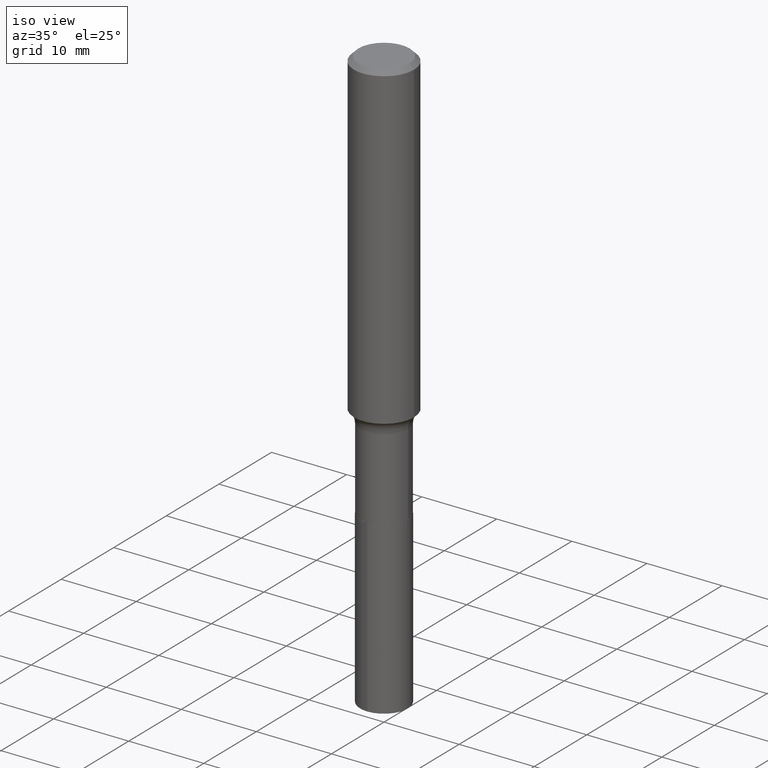
[diagram: clean part render]
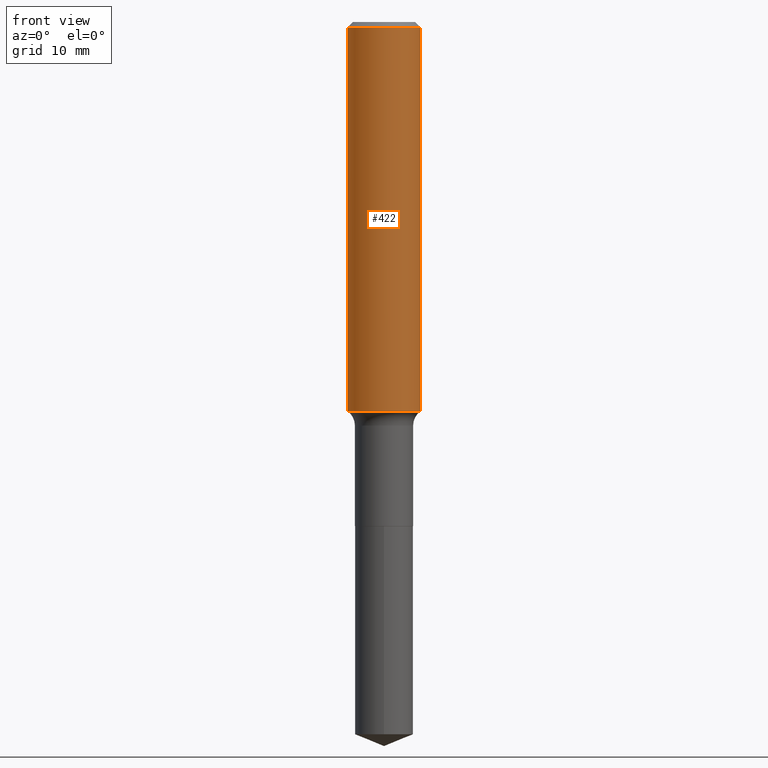
[diagram: tour spotlight — one face highlighted and labeled with its STEP entity id]
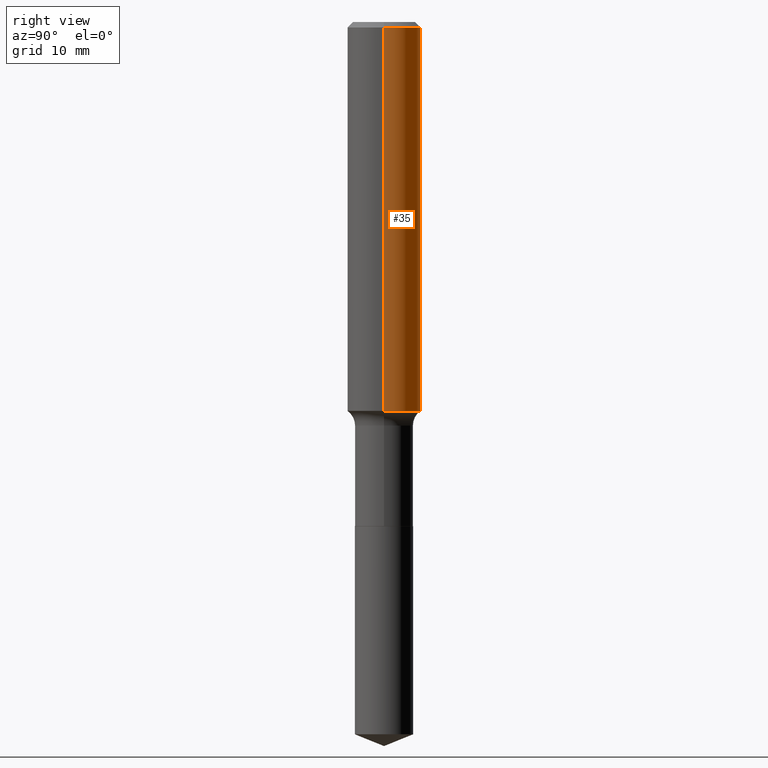
[diagram: tour spotlight — one face highlighted and labeled with its STEP entity id]
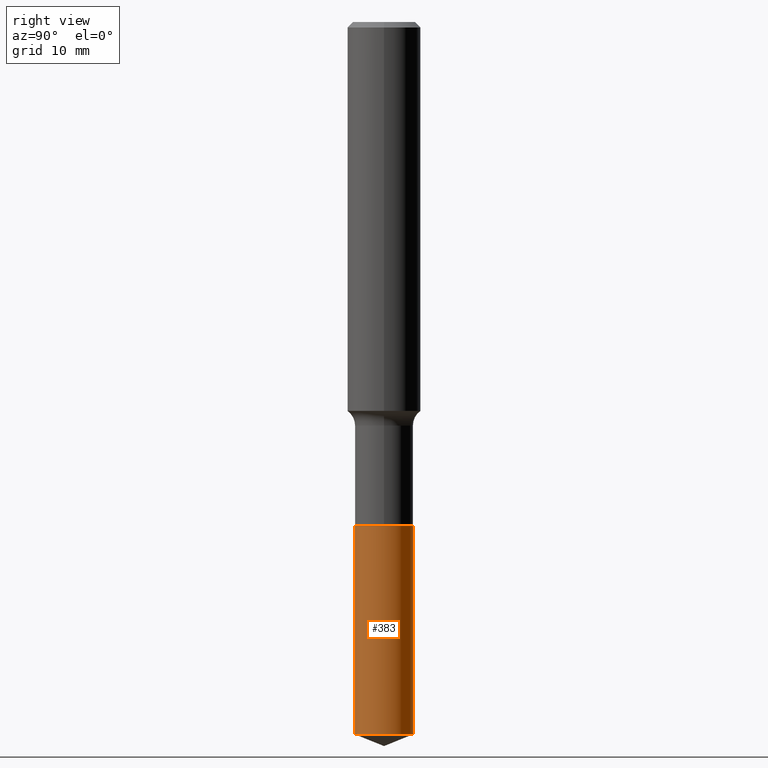
[diagram: tour spotlight — one face highlighted and labeled with its STEP entity id]
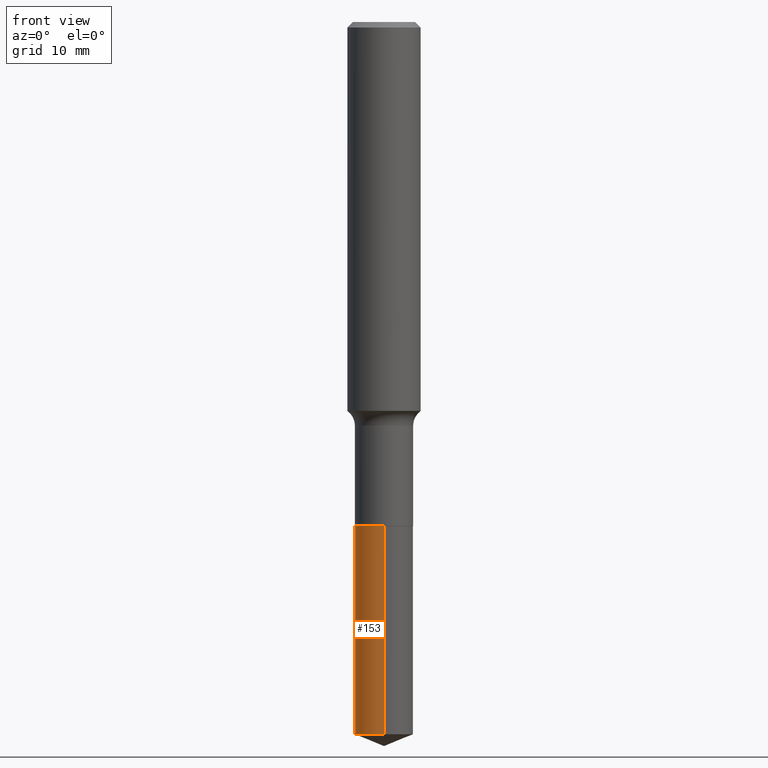
[diagram: tour spotlight — one face highlighted and labeled with its STEP entity id]
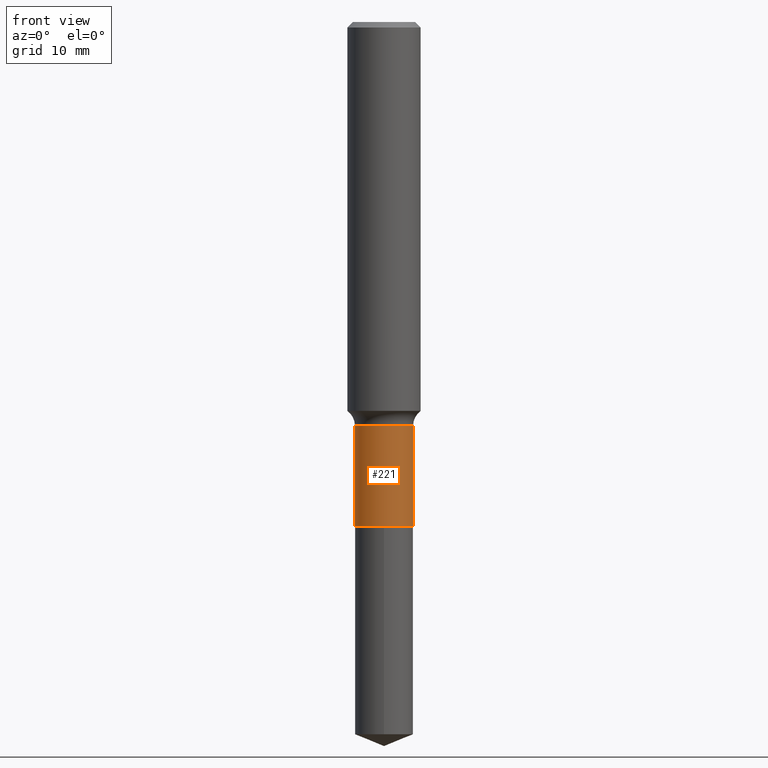
[diagram: tour spotlight — one face highlighted and labeled with its STEP entity id]
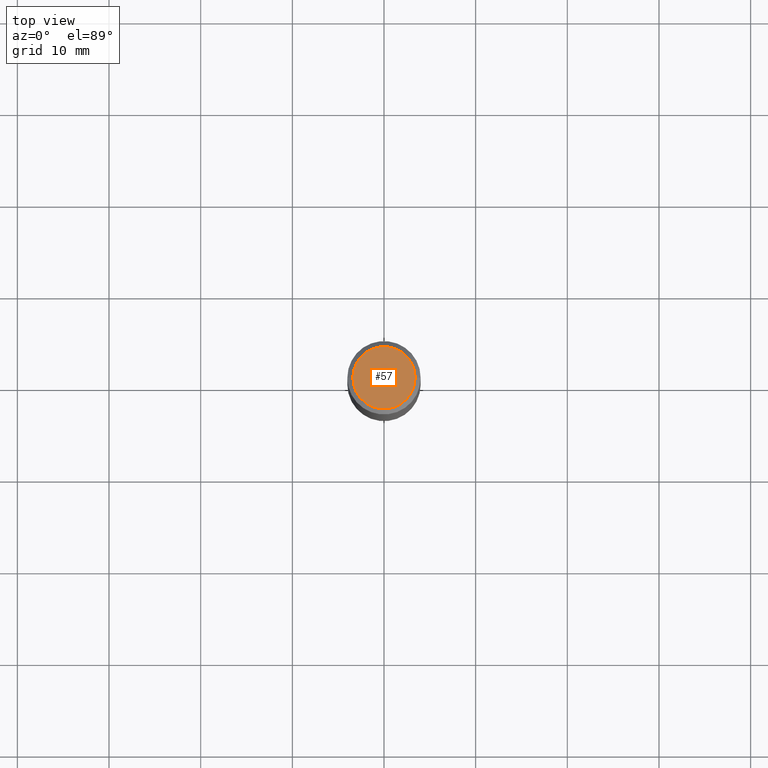
[diagram: tour spotlight — one face highlighted and labeled with its STEP entity id]
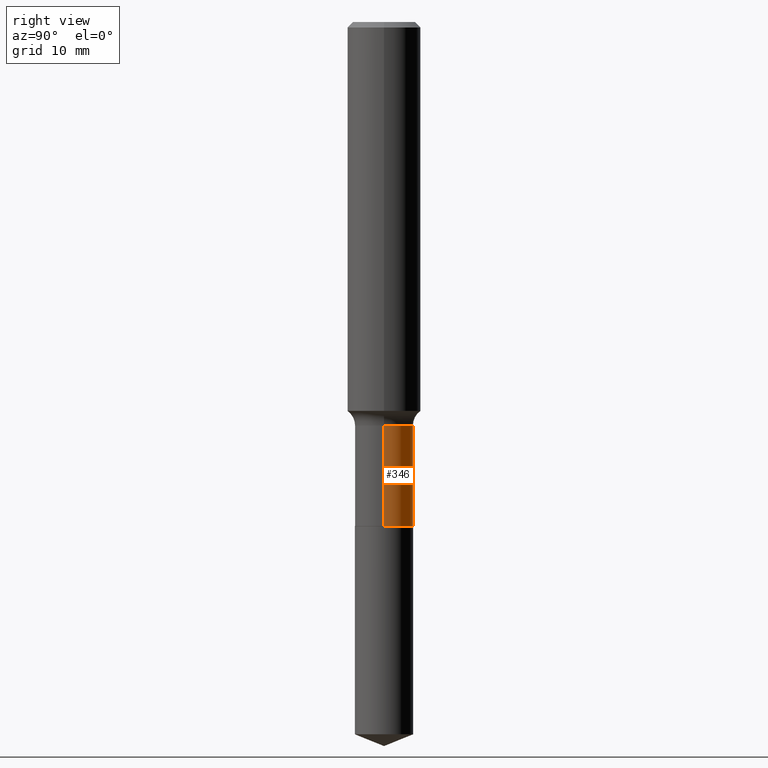
[diagram: tour spotlight — one face highlighted and labeled with its STEP entity id]
A machine part: a face-by-face anatomy tour. The part has 17 B-rep faces; the first image is the clean iso view, then the 7 largest visible faces are spotlighted one at a time (largest first), each with its STEP entity span.

Face 1 — front view, entity #422. In plain terms, the highlighted cylindrical surface (partial cylindrical patch) has radius 4.0005 mm, axis along (-0, 0, 1).
Definition (entity closure, byte-faithful):
#16 = DIRECTION ( 'NONE',  ( 1.000000000000000000, -6.982962677686265922E-15, 0.000000000000000000 ) ) ;
#33 = CYLINDRICAL_SURFACE ( 'NONE', #327, 0.1575000000000000844 ) ;
#34 = CARTESIAN_POINT ( 'NONE',  ( 0.1575000000000000844, -1.099816621735587677E-15, 7.679978421878603638E-30 ) ) ;
#36 = CARTESIAN_POINT ( 'NONE',  ( 0.000000000000000000, 0.000000000000000000, 0.000000000000000000 ) ) ;
#41 = DIRECTION ( 'NONE',  ( -2.445468806185136597E-29, 3.491481338843145583E-15, 1.000000000000000000 ) ) ;
#58 = CARTESIAN_POINT ( 'NONE',  ( -0.1575000000000000011, -1.838827269989437194E-15, -0.02362500000000013201 ) ) ;
#68 = VERTEX_POINT ( 'NONE', #58 ) ;
#81 = VERTEX_POINT ( 'NONE', #464 ) ;
#86 = EDGE_CURVE ( 'NONE', #188, #425, #240, .T. ) ;
#163 = DIRECTION ( 'NONE',  ( 1.000000000000000000, -6.982962677686265922E-15, 0.000000000000000000 ) ) ;
#166 = DIRECTION ( 'NONE',  ( -2.445468806185136877E-29, 3.491481338843145188E-15, 1.000000000000000000 ) ) ;
#172 = CARTESIAN_POINT ( 'NONE',  ( -0.1575000000000002232, -4.714273102170862595E-15, -1.670745836758741554 ) ) ;
#188 = VERTEX_POINT ( 'NONE', #172 ) ;
#213 = DIRECTION ( 'NONE',  ( -2.445468806185136597E-29, 3.491481338843145583E-15, 1.000000000000000000 ) ) ;
#227 = ORIENTED_EDGE ( 'NONE', *, *, #233, .F. ) ;
#229 = LINE ( 'NONE', #34, #323 ) ;
#233 = EDGE_CURVE ( 'NONE', #188, #68, #441, .T. ) ;
#240 = CIRCLE ( 'NONE', #386, 0.1575000000000001954 ) ;
#256 = CARTESIAN_POINT ( 'NONE',  ( -0.1575000000000000844, 1.119104808822158392E-15, -7.747322767151481189E-30 ) ) ;
#267 = FACE_OUTER_BOUND ( 'NONE', #416, .T. ) ;
#292 = DIRECTION ( 'NONE',  ( -2.445468806185136597E-29, 3.491481338843145583E-15, 1.000000000000000000 ) ) ;
#316 = CARTESIAN_POINT ( 'NONE',  ( 0.1575000000000002232, -6.933194532728610045E-15, -1.670745836758741554 ) ) ;
#317 = ORIENTED_EDGE ( 'NONE', *, *, #86, .T. ) ;
#319 = ORIENTED_EDGE ( 'NONE', *, *, #354, .T. ) ;
#323 = VECTOR ( 'NONE', #356, 39.37007874015748143 ) ;
#327 = AXIS2_PLACEMENT_3D ( 'NONE', #36, #41, #486 ) ;
#354 = EDGE_CURVE ( 'NONE', #425, #81, #229, .T. ) ;
#356 = DIRECTION ( 'NONE',  ( -2.445468806185136877E-29, 3.491481338843145188E-15, 1.000000000000000000 ) ) ;
#357 = CIRCLE ( 'NONE', #417, 0.1575000000000000011 ) ;
#371 = CARTESIAN_POINT ( 'NONE',  ( 4.085756826857186325E-29, -5.833377910993022565E-15, -1.670745836758741554 ) ) ;
#372 = CARTESIAN_POINT ( 'NONE',  ( 5.777420054612417601E-31, -8.248624663016977839E-17, -0.02362500000000013201 ) ) ;
#380 = VECTOR ( 'NONE', #166, 39.37007874015748143 ) ;
#386 = AXIS2_PLACEMENT_3D ( 'NONE', #371, #292, #16 ) ;
#399 = EDGE_CURVE ( 'NONE', #68, #81, #357, .T. ) ;
#403 = ORIENTED_EDGE ( 'NONE', *, *, #399, .F. ) ;
#416 = EDGE_LOOP ( 'NONE', ( #227, #317, #319, #403 ) ) ;
#417 = AXIS2_PLACEMENT_3D ( 'NONE', #372, #213, #163 ) ;
#422 = ADVANCED_FACE ( 'NONE', ( #267 ), #33, .T. ) ;
#425 = VERTEX_POINT ( 'NONE', #316 ) ;
#441 = LINE ( 'NONE', #256, #380 ) ;
#464 = CARTESIAN_POINT ( 'NONE',  ( 0.1575000000000000011, -1.182302868365756679E-15, -0.02362500000000013201 ) ) ;
#486 = DIRECTION ( 'NONE',  ( 1.000000000000000000, -6.982962677686267499E-15, 4.876176775795936353E-29 ) ) ;

Face 2 — right view, entity #35. In plain terms, the highlighted cylindrical surface (partial cylindrical patch) has radius 4.0005 mm, axis along (-0, 0, 1).
Definition (entity closure, byte-faithful):
#14 = DIRECTION ( 'NONE',  ( 1.000000000000000000, -6.982962677686267499E-15, 4.876176775795936353E-29 ) ) ;
#34 = CARTESIAN_POINT ( 'NONE',  ( 0.1575000000000000844, -1.099816621735587677E-15, 7.679978421878603638E-30 ) ) ;
#35 = ADVANCED_FACE ( 'NONE', ( #402 ), #258, .T. ) ;
#58 = CARTESIAN_POINT ( 'NONE',  ( -0.1575000000000000011, -1.838827269989437194E-15, -0.02362500000000013201 ) ) ;
#64 = CARTESIAN_POINT ( 'NONE',  ( 0.000000000000000000, 0.000000000000000000, 0.000000000000000000 ) ) ;
#68 = VERTEX_POINT ( 'NONE', #58 ) ;
#81 = VERTEX_POINT ( 'NONE', #464 ) ;
#83 = DIRECTION ( 'NONE',  ( -2.445468806185136597E-29, 3.491481338843145583E-15, 1.000000000000000000 ) ) ;
#101 = DIRECTION ( 'NONE',  ( -2.445468806185136597E-29, 3.491481338843145583E-15, 1.000000000000000000 ) ) ;
#123 = CIRCLE ( 'NONE', #157, 0.1575000000000000011 ) ;
#148 = AXIS2_PLACEMENT_3D ( 'NONE', #453, #101, #265 ) ;
#157 = AXIS2_PLACEMENT_3D ( 'NONE', #235, #83, #424 ) ;
#166 = DIRECTION ( 'NONE',  ( -2.445468806185136877E-29, 3.491481338843145188E-15, 1.000000000000000000 ) ) ;
#172 = CARTESIAN_POINT ( 'NONE',  ( -0.1575000000000002232, -4.714273102170862595E-15, -1.670745836758741554 ) ) ;
#176 = AXIS2_PLACEMENT_3D ( 'NONE', #64, #203, #14 ) ;
#187 = ORIENTED_EDGE ( 'NONE', *, *, #321, .F. ) ;
#188 = VERTEX_POINT ( 'NONE', #172 ) ;
#203 = DIRECTION ( 'NONE',  ( -2.445468806185136597E-29, 3.491481338843145583E-15, 1.000000000000000000 ) ) ;
#205 = EDGE_LOOP ( 'NONE', ( #432, #272, #187, #400 ) ) ;
#229 = LINE ( 'NONE', #34, #323 ) ;
#233 = EDGE_CURVE ( 'NONE', #188, #68, #441, .T. ) ;
#235 = CARTESIAN_POINT ( 'NONE',  ( 5.777420054612417601E-31, -8.248624663016977839E-17, -0.02362500000000013201 ) ) ;
#256 = CARTESIAN_POINT ( 'NONE',  ( -0.1575000000000000844, 1.119104808822158392E-15, -7.747322767151481189E-30 ) ) ;
#258 = CYLINDRICAL_SURFACE ( 'NONE', #176, 0.1575000000000000844 ) ;
#263 = CIRCLE ( 'NONE', #148, 0.1575000000000001954 ) ;
#265 = DIRECTION ( 'NONE',  ( 1.000000000000000000, -6.982962677686265922E-15, 0.000000000000000000 ) ) ;
#272 = ORIENTED_EDGE ( 'NONE', *, *, #233, .T. ) ;
#316 = CARTESIAN_POINT ( 'NONE',  ( 0.1575000000000002232, -6.933194532728610045E-15, -1.670745836758741554 ) ) ;
#321 = EDGE_CURVE ( 'NONE', #81, #68, #123, .T. ) ;
#323 = VECTOR ( 'NONE', #356, 39.37007874015748143 ) ;
#354 = EDGE_CURVE ( 'NONE', #425, #81, #229, .T. ) ;
#356 = DIRECTION ( 'NONE',  ( -2.445468806185136877E-29, 3.491481338843145188E-15, 1.000000000000000000 ) ) ;
#380 = VECTOR ( 'NONE', #166, 39.37007874015748143 ) ;
#400 = ORIENTED_EDGE ( 'NONE', *, *, #354, .F. ) ;
#402 = FACE_OUTER_BOUND ( 'NONE', #205, .T. ) ;
#424 = DIRECTION ( 'NONE',  ( 1.000000000000000000, -6.982962677686265922E-15, 0.000000000000000000 ) ) ;
#425 = VERTEX_POINT ( 'NONE', #316 ) ;
#432 = ORIENTED_EDGE ( 'NONE', *, *, #481, .T. ) ;
#441 = LINE ( 'NONE', #256, #380 ) ;
#453 = CARTESIAN_POINT ( 'NONE',  ( 4.085756826857186325E-29, -5.833377910993022565E-15, -1.670745836758741554 ) ) ;
#464 = CARTESIAN_POINT ( 'NONE',  ( 0.1575000000000000011, -1.182302868365756679E-15, -0.02362500000000013201 ) ) ;
#481 = EDGE_CURVE ( 'NONE', #425, #188, #263, .T. ) ;

Face 3 — right view, entity #383. In plain terms, the highlighted cylindrical surface (edge-blend (fillet) strip) has radius 3.175 mm, axis along (-0, 0, 1).
Definition (entity closure, byte-faithful):
#1 = DIRECTION ( 'NONE',  ( -2.445585184634229399E-29, 3.491314678280194748E-15, 1.000000000000000000 ) ) ;
#27 = CARTESIAN_POINT ( 'NONE',  ( 8.881784197002001741E-16, 0.1249999999999893557, -3.059696721770607475 ) ) ;
#37 = CARTESIAN_POINT ( 'NONE',  ( 7.482496977980294484E-29, -1.068272494592047058E-14, -3.059696721770606587 ) ) ;
#46 = CARTESIAN_POINT ( 'NONE',  ( -8.728703347107302879E-16, -0.1250000000000075495, -2.165299999999999336 ) ) ;
#75 = EDGE_CURVE ( 'NONE', #382, #492, #366, .T. ) ;
#114 = AXIS2_PLACEMENT_3D ( 'NONE', #483, #367, #297 ) ;
#128 = EDGE_CURVE ( 'NONE', #306, #492, #376, .T. ) ;
#137 = ORIENTED_EDGE ( 'NONE', *, *, #128, .F. ) ;
#142 = DIRECTION ( 'NONE',  ( -6.982962677686265922E-15, -1.000000000000000000, 4.370956789862821150E-15 ) ) ;
#147 = AXIS2_PLACEMENT_3D ( 'NONE', #37, #191, #142 ) ;
#159 = DIRECTION ( 'NONE',  ( -2.445585184634229399E-29, 3.491314678280194748E-15, 1.000000000000000000 ) ) ;
#167 = DIRECTION ( 'NONE',  ( -2.445585184634229399E-29, 3.491314678280194748E-15, 1.000000000000000000 ) ) ;
#169 = VECTOR ( 'NONE', #159, 39.37007874015748143 ) ;
#179 = CYLINDRICAL_SURFACE ( 'NONE', #114, 0.1250000000000000000 ) ;
#189 = CARTESIAN_POINT ( 'NONE',  ( -8.728703347107302879E-16, -0.1250000000000075495, -2.165299999999999336 ) ) ;
#191 = DIRECTION ( 'NONE',  ( -2.445585184634229399E-29, 3.491314678280194748E-15, 1.000000000000000000 ) ) ;
#206 = AXIS2_PLACEMENT_3D ( 'NONE', #331, #167, #435 ) ;
#234 = CIRCLE ( 'NONE', #147, 0.1250000000000000000 ) ;
#279 = ORIENTED_EDGE ( 'NONE', *, *, #329, .T. ) ;
#297 = DIRECTION ( 'NONE',  ( -6.982962677686265922E-15, -1.000000000000000000, 4.370956789862821150E-15 ) ) ;
#306 = VERTEX_POINT ( 'NONE', #46 ) ;
#329 = EDGE_CURVE ( 'NONE', #451, #382, #234, .T. ) ;
#331 = CARTESIAN_POINT ( 'NONE',  ( 5.295173606032675561E-29, -7.560104542997063911E-15, -2.165299999999999780 ) ) ;
#334 = CARTESIAN_POINT ( 'NONE',  ( 8.881784197001780860E-16, 0.1249999999999924366, -2.165300000000000669 ) ) ;
#352 = CARTESIAN_POINT ( 'NONE',  ( 8.881784197001999769E-16, 0.1249999999999924366, -2.165300000000000669 ) ) ;
#366 = LINE ( 'NONE', #334, #169 ) ;
#367 = DIRECTION ( 'NONE',  ( -2.445585184634229399E-29, 3.491314678280194748E-15, 1.000000000000000000 ) ) ;
#369 = VECTOR ( 'NONE', #1, 39.37007874015748143 ) ;
#376 = CIRCLE ( 'NONE', #206, 0.1250000000000000000 ) ;
#382 = VERTEX_POINT ( 'NONE', #27 ) ;
#383 = ADVANCED_FACE ( 'NONE', ( #443 ), #179, .T. ) ;
#389 = CARTESIAN_POINT ( 'NONE',  ( -8.728703347107086929E-16, -0.1250000000000107137, -3.059696721770606143 ) ) ;
#426 = ORIENTED_EDGE ( 'NONE', *, *, #472, .F. ) ;
#435 = DIRECTION ( 'NONE',  ( -6.982962677686265922E-15, -1.000000000000000000, 4.370956789862821150E-15 ) ) ;
#443 = FACE_OUTER_BOUND ( 'NONE', #461, .T. ) ;
#450 = LINE ( 'NONE', #189, #369 ) ;
#451 = VERTEX_POINT ( 'NONE', #389 ) ;
#461 = EDGE_LOOP ( 'NONE', ( #279, #468, #137, #426 ) ) ;
#468 = ORIENTED_EDGE ( 'NONE', *, *, #75, .T. ) ;
#472 = EDGE_CURVE ( 'NONE', #451, #306, #450, .T. ) ;
#483 = CARTESIAN_POINT ( 'NONE',  ( 5.295173606032675561E-29, -7.560104542997063911E-15, -2.165299999999999780 ) ) ;
#492 = VERTEX_POINT ( 'NONE', #352 ) ;

Face 4 — front view, entity #153. In plain terms, the highlighted cylindrical surface (edge-blend (fillet) strip) has radius 3.175 mm, axis along (-0, 0, 1).
Definition (entity closure, byte-faithful):
#1 = DIRECTION ( 'NONE',  ( -2.445585184634229399E-29, 3.491314678280194748E-15, 1.000000000000000000 ) ) ;
#27 = CARTESIAN_POINT ( 'NONE',  ( 8.881784197002001741E-16, 0.1249999999999893557, -3.059696721770607475 ) ) ;
#39 = ORIENTED_EDGE ( 'NONE', *, *, #472, .T. ) ;
#42 = EDGE_LOOP ( 'NONE', ( #282, #379, #39, #257 ) ) ;
#46 = CARTESIAN_POINT ( 'NONE',  ( -8.728703347107302879E-16, -0.1250000000000075495, -2.165299999999999336 ) ) ;
#55 = AXIS2_PLACEMENT_3D ( 'NONE', #313, #446, #118 ) ;
#66 = CIRCLE ( 'NONE', #55, 0.1250000000000000000 ) ;
#72 = FACE_OUTER_BOUND ( 'NONE', #42, .T. ) ;
#75 = EDGE_CURVE ( 'NONE', #382, #492, #366, .T. ) ;
#118 = DIRECTION ( 'NONE',  ( -6.982962677686265922E-15, -1.000000000000000000, 4.370956789862821150E-15 ) ) ;
#153 = ADVANCED_FACE ( 'NONE', ( #72 ), #283, .T. ) ;
#159 = DIRECTION ( 'NONE',  ( -2.445585184634229399E-29, 3.491314678280194748E-15, 1.000000000000000000 ) ) ;
#169 = VECTOR ( 'NONE', #159, 39.37007874015748143 ) ;
#189 = CARTESIAN_POINT ( 'NONE',  ( -8.728703347107302879E-16, -0.1250000000000075495, -2.165299999999999336 ) ) ;
#201 = DIRECTION ( 'NONE',  ( -2.445585184634229399E-29, 3.491314678280194748E-15, 1.000000000000000000 ) ) ;
#218 = EDGE_CURVE ( 'NONE', #492, #306, #404, .T. ) ;
#222 = DIRECTION ( 'NONE',  ( -2.445585184634229399E-29, 3.491314678280194748E-15, 1.000000000000000000 ) ) ;
#257 = ORIENTED_EDGE ( 'NONE', *, *, #218, .F. ) ;
#282 = ORIENTED_EDGE ( 'NONE', *, *, #75, .F. ) ;
#283 = CYLINDRICAL_SURFACE ( 'NONE', #440, 0.1250000000000000000 ) ;
#306 = VERTEX_POINT ( 'NONE', #46 ) ;
#313 = CARTESIAN_POINT ( 'NONE',  ( 7.482496977980294484E-29, -1.068272494592047058E-14, -3.059696721770606587 ) ) ;
#334 = CARTESIAN_POINT ( 'NONE',  ( 8.881784197001780860E-16, 0.1249999999999924366, -2.165300000000000669 ) ) ;
#352 = CARTESIAN_POINT ( 'NONE',  ( 8.881784197001999769E-16, 0.1249999999999924366, -2.165300000000000669 ) ) ;
#363 = EDGE_CURVE ( 'NONE', #382, #451, #66, .T. ) ;
#366 = LINE ( 'NONE', #334, #169 ) ;
#369 = VECTOR ( 'NONE', #1, 39.37007874015748143 ) ;
#379 = ORIENTED_EDGE ( 'NONE', *, *, #363, .T. ) ;
#381 = AXIS2_PLACEMENT_3D ( 'NONE', #487, #222, #442 ) ;
#382 = VERTEX_POINT ( 'NONE', #27 ) ;
#389 = CARTESIAN_POINT ( 'NONE',  ( -8.728703347107086929E-16, -0.1250000000000107137, -3.059696721770606143 ) ) ;
#396 = CARTESIAN_POINT ( 'NONE',  ( 5.295173606032675561E-29, -7.560104542997063911E-15, -2.165299999999999780 ) ) ;
#404 = CIRCLE ( 'NONE', #381, 0.1250000000000000000 ) ;
#440 = AXIS2_PLACEMENT_3D ( 'NONE', #396, #201, #448 ) ;
#442 = DIRECTION ( 'NONE',  ( -6.982962677686265922E-15, -1.000000000000000000, 4.370956789862821150E-15 ) ) ;
#446 = DIRECTION ( 'NONE',  ( -2.445585184634229399E-29, 3.491314678280194748E-15, 1.000000000000000000 ) ) ;
#448 = DIRECTION ( 'NONE',  ( -6.982962677686265922E-15, -1.000000000000000000, 4.370956789862821150E-15 ) ) ;
#450 = LINE ( 'NONE', #189, #369 ) ;
#451 = VERTEX_POINT ( 'NONE', #389 ) ;
#472 = EDGE_CURVE ( 'NONE', #451, #306, #450, .T. ) ;
#487 = CARTESIAN_POINT ( 'NONE',  ( 5.295173606032675561E-29, -7.560104542997063911E-15, -2.165299999999999780 ) ) ;
#492 = VERTEX_POINT ( 'NONE', #352 ) ;

Face 5 — front view, entity #221. In plain terms, the highlighted cylindrical surface (edge-blend (fillet) strip) has radius 3.175 mm, axis along (-0, 0, 1).
Definition (entity closure, byte-faithful):
#29 = DIRECTION ( 'NONE',  ( -2.445468806185136597E-29, 3.491481338843145583E-15, 1.000000000000000000 ) ) ;
#38 = AXIS2_PLACEMENT_3D ( 'NONE', #84, #395, #465 ) ;
#51 = DIRECTION ( 'NONE',  ( -2.445468806185136877E-29, 3.491481338843145188E-15, 1.000000000000000000 ) ) ;
#61 = EDGE_CURVE ( 'NONE', #192, #160, #288, .T. ) ;
#71 = CARTESIAN_POINT ( 'NONE',  ( 0.000000000000000000, 0.000000000000000000, 0.000000000000000000 ) ) ;
#73 = VERTEX_POINT ( 'NONE', #245 ) ;
#74 = EDGE_CURVE ( 'NONE', #73, #397, #208, .T. ) ;
#84 = CARTESIAN_POINT ( 'NONE',  ( 5.293950871629583880E-29, -7.558358802327641618E-15, -2.164800000000000058 ) ) ;
#85 = DIRECTION ( 'NONE',  ( -2.445468806185136877E-29, 3.491481338843145188E-15, 1.000000000000000000 ) ) ;
#100 = FACE_OUTER_BOUND ( 'NONE', #211, .T. ) ;
#112 = ORIENTED_EDGE ( 'NONE', *, *, #130, .T. ) ;
#130 = EDGE_CURVE ( 'NONE', #192, #73, #215, .T. ) ;
#131 = VECTOR ( 'NONE', #51, 39.37007874015748143 ) ;
#160 = VERTEX_POINT ( 'NONE', #228 ) ;
#182 = CARTESIAN_POINT ( 'NONE',  ( 4.240687456805644908E-29, -6.054577789687898491E-15, -1.734099999999999975 ) ) ;
#192 = VERTEX_POINT ( 'NONE', #343 ) ;
#208 = LINE ( 'NONE', #398, #131 ) ;
#209 = CARTESIAN_POINT ( 'NONE',  ( 0.1249999999999999861, -6.927448124398681041E-15, -1.734099999999999975 ) ) ;
#211 = EDGE_LOOP ( 'NONE', ( #248, #112, #462, #259 ) ) ;
#215 = CIRCLE ( 'NONE', #38, 0.1250000000000000555 ) ;
#221 = ADVANCED_FACE ( 'NONE', ( #100 ), #264, .T. ) ;
#226 = AXIS2_PLACEMENT_3D ( 'NONE', #182, #491, #444 ) ;
#228 = CARTESIAN_POINT ( 'NONE',  ( -0.1249999999999999861, -5.918289876307644428E-15, -1.734099999999999975 ) ) ;
#245 = CARTESIAN_POINT ( 'NONE',  ( 0.1250000000000000555, -8.431229137038424957E-15, -2.164800000000000058 ) ) ;
#248 = ORIENTED_EDGE ( 'NONE', *, *, #61, .F. ) ;
#259 = ORIENTED_EDGE ( 'NONE', *, *, #434, .F. ) ;
#262 = CIRCLE ( 'NONE', #226, 0.1249999999999999861 ) ;
#264 = CYLINDRICAL_SURFACE ( 'NONE', #315, 0.1250000000000000278 ) ;
#288 = LINE ( 'NONE', #431, #322 ) ;
#315 = AXIS2_PLACEMENT_3D ( 'NONE', #71, #29, #477 ) ;
#322 = VECTOR ( 'NONE', #85, 39.37007874015748143 ) ;
#343 = CARTESIAN_POINT ( 'NONE',  ( -0.1250000000000000555, -5.918289876307644428E-15, -2.164800000000000058 ) ) ;
#395 = DIRECTION ( 'NONE',  ( -2.445468806185136597E-29, 3.491481338843145583E-15, 1.000000000000000000 ) ) ;
#397 = VERTEX_POINT ( 'NONE', #209 ) ;
#398 = CARTESIAN_POINT ( 'NONE',  ( 0.1250000000000000278, -8.728703347107836346E-16, 6.095220969744921142E-30 ) ) ;
#431 = CARTESIAN_POINT ( 'NONE',  ( -0.1250000000000000278, 8.881784197001254296E-16, -6.148668862818634329E-30 ) ) ;
#434 = EDGE_CURVE ( 'NONE', #160, #397, #262, .T. ) ;
#444 = DIRECTION ( 'NONE',  ( 1.000000000000000000, -6.982962677686263555E-15, 0.000000000000000000 ) ) ;
#462 = ORIENTED_EDGE ( 'NONE', *, *, #74, .T. ) ;
#465 = DIRECTION ( 'NONE',  ( 1.000000000000000000, -6.982962677686267499E-15, 0.000000000000000000 ) ) ;
#477 = DIRECTION ( 'NONE',  ( 1.000000000000000000, -6.982962677686267499E-15, 4.876176775795935793E-29 ) ) ;
#491 = DIRECTION ( 'NONE',  ( -2.445468806185136597E-29, 3.491481338843145583E-15, 1.000000000000000000 ) ) ;

Face 6 — top view, entity #57. In plain terms, the highlighted planar face has unit normal (0, -0, -1).
Definition (entity closure, byte-faithful):
#18 = VERTEX_POINT ( 'NONE', #168 ) ;
#54 = CARTESIAN_POINT ( 'NONE',  ( -1.002970424325033577E-46, 1.431975951230896486E-32, 4.101342130344485961E-18 ) ) ;
#57 = ADVANCED_FACE ( 'NONE', ( #115 ), #326, .F. ) ;
#90 = CIRCLE ( 'NONE', #216, 0.1338749999999999940 ) ;
#97 = DIRECTION ( 'NONE',  ( 1.000000000000000000, -6.982962677686266711E-15, 4.876170806578254279E-29 ) ) ;
#103 = AXIS2_PLACEMENT_3D ( 'NONE', #459, #406, #162 ) ;
#107 = DIRECTION ( 'NONE',  ( -2.445468806185136597E-29, 3.491481338843145583E-15, 1.000000000000000000 ) ) ;
#115 = FACE_OUTER_BOUND ( 'NONE', #136, .T. ) ;
#136 = EDGE_LOOP ( 'NONE', ( #485, #289 ) ) ;
#141 = AXIS2_PLACEMENT_3D ( 'NONE', #54, #467, #97 ) ;
#162 = DIRECTION ( 'NONE',  ( -1.000000000000000000, 6.982962677686265922E-15, -4.876176775795935793E-29 ) ) ;
#168 = CARTESIAN_POINT ( 'NONE',  ( 0.1338749999999999940, -1.040731925365424925E-15, 4.101342130351393887E-18 ) ) ;
#216 = AXIS2_PLACEMENT_3D ( 'NONE', #278, #107, #239 ) ;
#236 = VERTEX_POINT ( 'NONE', #335 ) ;
#239 = DIRECTION ( 'NONE',  ( 1.000000000000000000, -6.982962677686266711E-15, 4.876170806578254279E-29 ) ) ;
#278 = CARTESIAN_POINT ( 'NONE',  ( -1.002970424325033577E-46, 1.431975951230896486E-32, 4.101342130344485961E-18 ) ) ;
#286 = EDGE_CURVE ( 'NONE', #18, #236, #90, .T. ) ;
#289 = ORIENTED_EDGE ( 'NONE', *, *, #286, .T. ) ;
#326 = PLANE ( 'NONE',  #103 ) ;
#335 = CARTESIAN_POINT ( 'NONE',  ( -0.1338749999999999940, 9.760872517903331886E-16, 4.101342130337804525E-18 ) ) ;
#364 = EDGE_CURVE ( 'NONE', #236, #18, #447, .T. ) ;
#406 = DIRECTION ( 'NONE',  ( 2.438088387897960049E-29, -3.491481338843145188E-15, -1.000000000000000000 ) ) ;
#447 = CIRCLE ( 'NONE', #141, 0.1338749999999999940 ) ;
#459 = CARTESIAN_POINT ( 'NONE',  ( -5.014852121625167883E-47, 7.159879756154482429E-33, 2.050671065172242981E-18 ) ) ;
#467 = DIRECTION ( 'NONE',  ( -2.445468806185136597E-29, 3.491481338843145583E-15, 1.000000000000000000 ) ) ;
#485 = ORIENTED_EDGE ( 'NONE', *, *, #364, .T. ) ;

Face 7 — right view, entity #346. In plain terms, the highlighted cylindrical surface (edge-blend (fillet) strip) has radius 3.175 mm, axis along (-0, 0, 1).
Definition (entity closure, byte-faithful):
#2 = ORIENTED_EDGE ( 'NONE', *, *, #138, .T. ) ;
#9 = ORIENTED_EDGE ( 'NONE', *, *, #61, .T. ) ;
#31 = CARTESIAN_POINT ( 'NONE',  ( 5.293950871629583880E-29, -7.558358802327641618E-15, -2.164800000000000058 ) ) ;
#44 = DIRECTION ( 'NONE',  ( -2.445468806185136597E-29, 3.491481338843145583E-15, 1.000000000000000000 ) ) ;
#51 = DIRECTION ( 'NONE',  ( -2.445468806185136877E-29, 3.491481338843145188E-15, 1.000000000000000000 ) ) ;
#61 = EDGE_CURVE ( 'NONE', #192, #160, #288, .T. ) ;
#62 = DIRECTION ( 'NONE',  ( -2.445468806185136597E-29, 3.491481338843145583E-15, 1.000000000000000000 ) ) ;
#73 = VERTEX_POINT ( 'NONE', #245 ) ;
#74 = EDGE_CURVE ( 'NONE', #73, #397, #208, .T. ) ;
#85 = DIRECTION ( 'NONE',  ( -2.445468806185136877E-29, 3.491481338843145188E-15, 1.000000000000000000 ) ) ;
#94 = DIRECTION ( 'NONE',  ( -2.445468806185136597E-29, 3.491481338843145583E-15, 1.000000000000000000 ) ) ;
#98 = AXIS2_PLACEMENT_3D ( 'NONE', #31, #94, #220 ) ;
#119 = CYLINDRICAL_SURFACE ( 'NONE', #170, 0.1250000000000000278 ) ;
#131 = VECTOR ( 'NONE', #51, 39.37007874015748143 ) ;
#138 = EDGE_CURVE ( 'NONE', #73, #192, #185, .T. ) ;
#145 = ORIENTED_EDGE ( 'NONE', *, *, #74, .F. ) ;
#160 = VERTEX_POINT ( 'NONE', #228 ) ;
#165 = DIRECTION ( 'NONE',  ( 1.000000000000000000, -6.982962677686267499E-15, 4.876176775795935793E-29 ) ) ;
#170 = AXIS2_PLACEMENT_3D ( 'NONE', #293, #62, #165 ) ;
#185 = CIRCLE ( 'NONE', #98, 0.1250000000000000555 ) ;
#192 = VERTEX_POINT ( 'NONE', #343 ) ;
#208 = LINE ( 'NONE', #398, #131 ) ;
#209 = CARTESIAN_POINT ( 'NONE',  ( 0.1249999999999999861, -6.927448124398681041E-15, -1.734099999999999975 ) ) ;
#220 = DIRECTION ( 'NONE',  ( 1.000000000000000000, -6.982962677686267499E-15, 0.000000000000000000 ) ) ;
#225 = CARTESIAN_POINT ( 'NONE',  ( 4.240687456805644908E-29, -6.054577789687898491E-15, -1.734099999999999975 ) ) ;
#228 = CARTESIAN_POINT ( 'NONE',  ( -0.1249999999999999861, -5.918289876307644428E-15, -1.734099999999999975 ) ) ;
#245 = CARTESIAN_POINT ( 'NONE',  ( 0.1250000000000000555, -8.431229137038424957E-15, -2.164800000000000058 ) ) ;
#288 = LINE ( 'NONE', #431, #322 ) ;
#293 = CARTESIAN_POINT ( 'NONE',  ( 0.000000000000000000, 0.000000000000000000, 0.000000000000000000 ) ) ;
#310 = DIRECTION ( 'NONE',  ( 1.000000000000000000, -6.982962677686263555E-15, 0.000000000000000000 ) ) ;
#322 = VECTOR ( 'NONE', #85, 39.37007874015748143 ) ;
#325 = ORIENTED_EDGE ( 'NONE', *, *, #414, .F. ) ;
#343 = CARTESIAN_POINT ( 'NONE',  ( -0.1250000000000000555, -5.918289876307644428E-15, -2.164800000000000058 ) ) ;
#346 = ADVANCED_FACE ( 'NONE', ( #368 ), #119, .T. ) ;
#368 = FACE_OUTER_BOUND ( 'NONE', #401, .T. ) ;
#397 = VERTEX_POINT ( 'NONE', #209 ) ;
#398 = CARTESIAN_POINT ( 'NONE',  ( 0.1250000000000000278, -8.728703347107836346E-16, 6.095220969744921142E-30 ) ) ;
#401 = EDGE_LOOP ( 'NONE', ( #2, #9, #325, #145 ) ) ;
#409 = AXIS2_PLACEMENT_3D ( 'NONE', #225, #44, #310 ) ;
#414 = EDGE_CURVE ( 'NONE', #397, #160, #474, .T. ) ;
#431 = CARTESIAN_POINT ( 'NONE',  ( -0.1250000000000000278, 8.881784197001254296E-16, -6.148668862818634329E-30 ) ) ;
#474 = CIRCLE ( 'NONE', #409, 0.1249999999999999861 ) ;